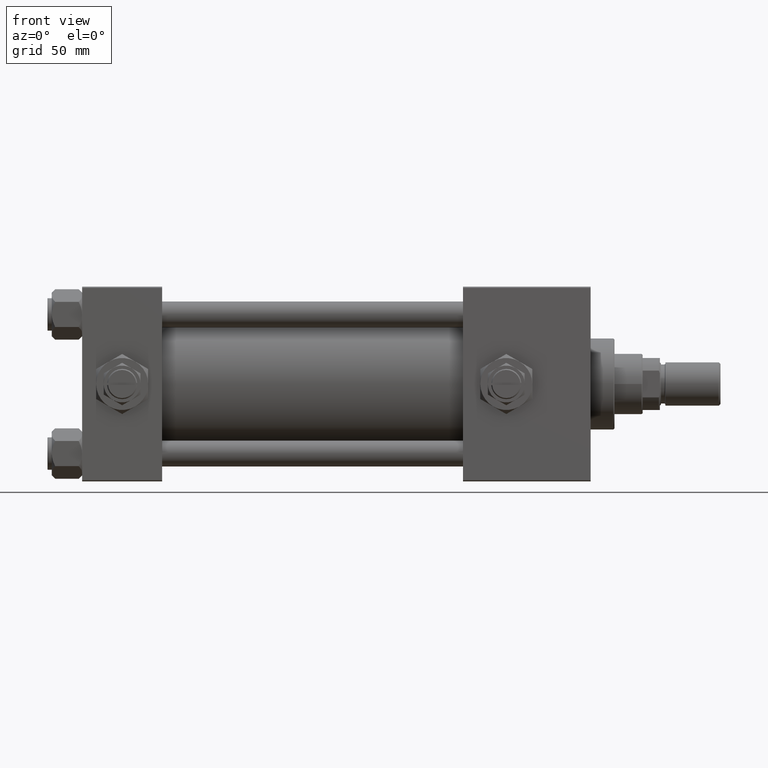
[diagram: clean part render]
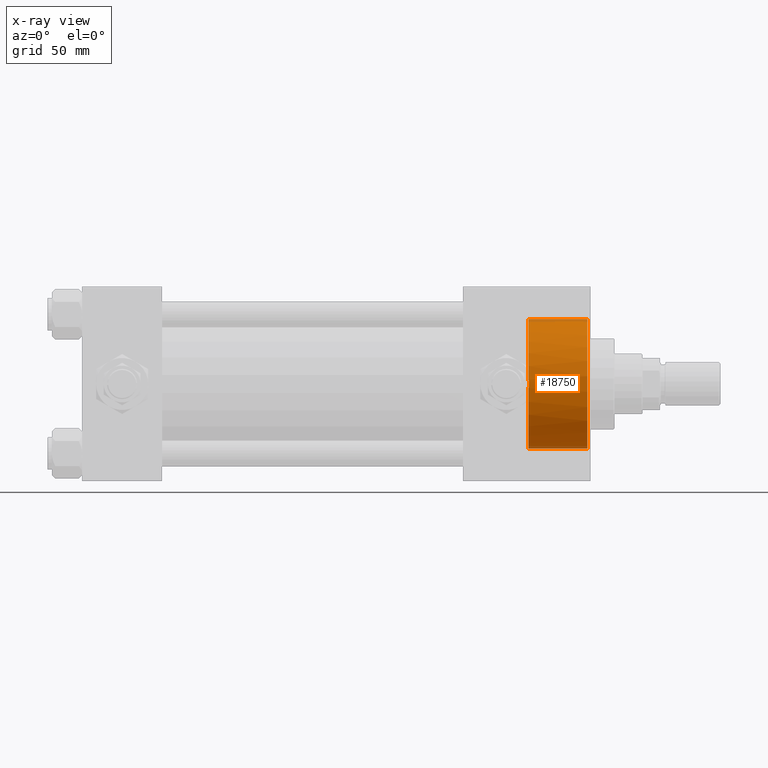
[diagram: x-ray — body ghosted, one internal face saturated and labeled with its STEP entity id]
A machine part, front view, then the same camera in x-ray: the body is ghosted and one INTERNAL B-rep face — a face not visible from any outside direction — is saturated and labeled: STEP entity #18750.
In plain terms, the highlighted cylindrical surface (partial cylindrical patch) has radius 30 mm, axis along (1, 0, 0).
Its self-contained STEP definition (entity closure, byte-faithful):
#609 = DIRECTION ( 'NONE',  ( 1.000000000000000000, -0.000000000000000000, -0.000000000000000000 ) ) ;
#2299 = VERTEX_POINT ( 'NONE', #21810 ) ;
#4521 = CARTESIAN_POINT ( 'NONE',  ( 206.3000000000000114, 0.000000000000000000, 0.000000000000000000 ) ) ;
#4625 = LINE ( 'NONE', #8923, #31865 ) ;
#5476 = CARTESIAN_POINT ( 'NONE',  ( 206.3000000000000114, -29.93759509379469819, 1.934011375354244056 ) ) ;
#5794 = ORIENTED_EDGE ( 'NONE', *, *, #7953, .F. ) ;
#6278 = CARTESIAN_POINT ( 'NONE',  ( 206.3000000000000114, 0.000000000000000000, 0.000000000000000000 ) ) ;
#6790 = FACE_OUTER_BOUND ( 'NONE', #8229, .T. ) ;
#7420 = CARTESIAN_POINT ( 'NONE',  ( 206.3000000000000114, 3.673940397442059178E-15, 30.00000000000000000 ) ) ;
#7953 = EDGE_CURVE ( 'NONE', #2299, #35581, #4625, .T. ) ;
#8229 = EDGE_LOOP ( 'NONE', ( #25072, #34579, #31049, #5794, #46641, #23630 ) ) ;
#8502 = EDGE_CURVE ( 'NONE', #38803, #2299, #26788, .T. ) ;
#8923 = CARTESIAN_POINT ( 'NONE',  ( 206.3000000000000114, 0.000000000000000000, -30.00000000000000000 ) ) ;
#11251 = EDGE_CURVE ( 'NONE', #19052, #39120, #19722, .T. ) ;
#11347 = DIRECTION ( 'NONE',  ( 0.000000000000000000, 0.000000000000000000, -1.000000000000000000 ) ) ;
#12287 = DIRECTION ( 'NONE',  ( 1.000000000000000000, 0.000000000000000000, 0.000000000000000000 ) ) ;
#13486 = CIRCLE ( 'NONE', #25425, 30.00000000000000000 ) ;
#13517 = EDGE_CURVE ( 'NONE', #38803, #17821, #34422, .T. ) ;
#17774 = CARTESIAN_POINT ( 'NONE',  ( 206.3000000000000114, -29.93759509379469819, 1.934011375354244056 ) ) ;
#17821 = VERTEX_POINT ( 'NONE', #17774 ) ;
#18750 = ADVANCED_FACE ( 'NONE', ( #6790 ), #39155, .F. ) ;
#19052 = VERTEX_POINT ( 'NONE', #49503 ) ;
#19315 = CARTESIAN_POINT ( 'NONE',  ( 206.3000000000000114, -29.93759509379469819, -1.934011375354248274 ) ) ;
#19722 = LINE ( 'NONE', #7420, #49988 ) ;
#20221 = AXIS2_PLACEMENT_3D ( 'NONE', #51995, #27894, #44203 ) ;
#20845 = CARTESIAN_POINT ( 'NONE',  ( 233.5000000000000284, 0.000000000000000000, -30.00000000000000000 ) ) ;
#21810 = CARTESIAN_POINT ( 'NONE',  ( 206.3000000000000114, 0.000000000000000000, -30.00000000000000000 ) ) ;
#22526 = AXIS2_PLACEMENT_3D ( 'NONE', #6278, #47456, #11347 ) ;
#23630 = ORIENTED_EDGE ( 'NONE', *, *, #13517, .T. ) ;
#24599 = DIRECTION ( 'NONE',  ( 0.000000000000000000, 0.000000000000000000, -1.000000000000000000 ) ) ;
#24742 = CIRCLE ( 'NONE', #34996, 30.00000000000000000 ) ;
#25072 = ORIENTED_EDGE ( 'NONE', *, *, #45989, .F. ) ;
#25425 = AXIS2_PLACEMENT_3D ( 'NONE', #33711, #25428, #41729 ) ;
#25428 = DIRECTION ( 'NONE',  ( 1.000000000000000000, 0.000000000000000000, 0.000000000000000000 ) ) ;
#26788 = CIRCLE ( 'NONE', #22526, 30.00000000000000000 ) ;
#27894 = DIRECTION ( 'NONE',  ( 1.000000000000000000, -0.000000000000000000, -0.000000000000000000 ) ) ;
#30238 = CARTESIAN_POINT ( 'NONE',  ( 233.5000000000000284, 3.673940397442059178E-15, 30.00000000000000000 ) ) ;
#31049 = ORIENTED_EDGE ( 'NONE', *, *, #41014, .T. ) ;
#31865 = VECTOR ( 'NONE', #609, 1000.000000000000000 ) ;
#33711 = CARTESIAN_POINT ( 'NONE',  ( 233.5000000000000284, 0.000000000000000000, 0.000000000000000000 ) ) ;
#34357 = CARTESIAN_POINT ( 'NONE',  ( 206.4210485436892952, -29.97924172559974565, -1.289340916902832479 ) ) ;
#34422 = B_SPLINE_CURVE_WITH_KNOTS ( 'NONE', 3,
 ( #46390, #34357, #38624, #50419, #5476 ),
 .UNSPECIFIED., .F., .F.,
 ( 4, 1, 4 ),
 ( 0.000000000000000000, 0.001934011375354246403, 0.003868022750708492805 ),
 .UNSPECIFIED. ) ;
#34579 = ORIENTED_EDGE ( 'NONE', *, *, #11251, .T. ) ;
#34996 = AXIS2_PLACEMENT_3D ( 'NONE', #4521, #12287, #24599 ) ;
#35581 = VERTEX_POINT ( 'NONE', #20845 ) ;
#38624 = CARTESIAN_POINT ( 'NONE',  ( 206.5389514563106559, -30.02075827440025080, -1.517883041479706208E-15 ) ) ;
#38803 = VERTEX_POINT ( 'NONE', #19315 ) ;
#39120 = VERTEX_POINT ( 'NONE', #30238 ) ;
#39155 = CYLINDRICAL_SURFACE ( 'NONE', #20221, 30.00000000000000000 ) ;
#41014 = EDGE_CURVE ( 'NONE', #39120, #35581, #13486, .T. ) ;
#41729 = DIRECTION ( 'NONE',  ( 0.000000000000000000, 0.000000000000000000, 1.000000000000000000 ) ) ;
#44203 = DIRECTION ( 'NONE',  ( 0.000000000000000000, 0.000000000000000000, -1.000000000000000000 ) ) ;
#45989 = EDGE_CURVE ( 'NONE', #19052, #17821, #24742, .T. ) ;
#46390 = CARTESIAN_POINT ( 'NONE',  ( 206.3000000000000114, -29.93759509379469819, -1.934011375354248274 ) ) ;
#46641 = ORIENTED_EDGE ( 'NONE', *, *, #8502, .F. ) ;
#47456 = DIRECTION ( 'NONE',  ( 1.000000000000000000, 0.000000000000000000, 0.000000000000000000 ) ) ;
#48869 = DIRECTION ( 'NONE',  ( 1.000000000000000000, -0.000000000000000000, -0.000000000000000000 ) ) ;
#49503 = CARTESIAN_POINT ( 'NONE',  ( 206.3000000000000114, 3.673940397442059178E-15, 30.00000000000000000 ) ) ;
#49988 = VECTOR ( 'NONE', #48869, 1000.000000000000000 ) ;
#50419 = CARTESIAN_POINT ( 'NONE',  ( 206.4210485436893805, -29.97924172559975275, 1.289340916902828038 ) ) ;
#51995 = CARTESIAN_POINT ( 'NONE',  ( 206.3000000000000114, 0.000000000000000000, 0.000000000000000000 ) ) ;